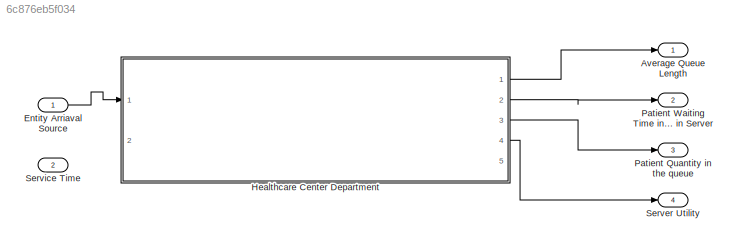
MODEL slx_6c876eb5f034
KIND library
CONFIG AbsTol = auto
CONFIG EnableMultiTasking = off
CONFIG FixedStep = auto
CONFIG MaxStep = auto
CONFIG MinStep = auto
CONFIG RelTol = 1e-3
CONFIG SampleTimeConstraint = Unconstrained
CONFIG Solver = VariableStepAuto
CONFIG SolverName = VariableStepAuto
CONFIG StartTime = 0.0
CONFIG StopTime = 10.0
BLOCK [Outport] Average Queue Length
  IconDisplay = Port number
BLOCK [Inport] Entity Arriaval Source
  IconDisplay = Port number
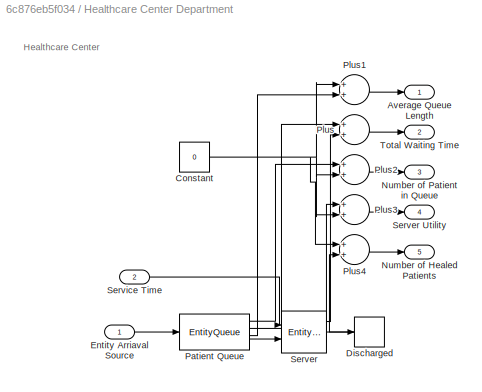
BLOCK [SubSystem] Healthcare Center Department
  Ports = [2, 5]
  RequestExecContextInheritance = off
BLOCK [Outport] Healthcare Center Department/Average Queue Length
  IconDisplay = Port number
BLOCK [Constant] Healthcare Center Department/Constant
  Value = 0
BLOCK [EntityTerminator] Healthcare Center Department/Discharged
  InputPortMap = u0
  InputPortMessageModes = m
  NumberEntitiesArrived = on
  OutputPortMap = o0
  Ports = [1, 1]
BLOCK [Inport] Healthcare Center Department/Entity Arriaval Source
  IconDisplay = Port number
BLOCK [Outport] Healthcare Center Department/Number of Healed Patients
  IconDisplay = Port number
  Port = 5
BLOCK [Outport] Healthcare Center Department/Number of Patient in Queue
  IconDisplay = Port number
  Port = 3
BLOCK [EntityQueue] Healthcare Center Department/Patient Queue
  AverageQueueLength = on
  AverageWait = on
  Capacity = 100000
  InputPortMap = u0
  InputPortMessageModes = m
  NumberEntitiesInBlock = on
  OutputPortMap = o1,o2,o3,o5
  OutputPortMessageModes = n,n,n,m
  Ports = [1, 4]
BLOCK [Sum] Healthcare Center Department/Plus
  InputSameDT = off
  OutDataTypeStr = Inherit: Inherit via internal rule
  Ports = [2, 1]
  SaturateOnIntegerOverflow = off
BLOCK [Sum] Healthcare Center Department/Plus1
  InputSameDT = off
  OutDataTypeStr = Inherit: Inherit via internal rule
  Ports = [2, 1]
  SaturateOnIntegerOverflow = off
BLOCK [Sum] Healthcare Center Department/Plus2
  InputSameDT = off
  OutDataTypeStr = Inherit: Inherit via internal rule
  Ports = [2, 1]
  SaturateOnIntegerOverflow = off
BLOCK [Sum] Healthcare Center Department/Plus3
  InputSameDT = off
  OutDataTypeStr = Inherit: Inherit via internal rule
  Ports = [2, 1]
  SaturateOnIntegerOverflow = off
BLOCK [Sum] Healthcare Center Department/Plus4
  InputSameDT = off
  OutDataTypeStr = Inherit: Inherit via internal rule
  Ports = [2, 1]
  SaturateOnIntegerOverflow = off
BLOCK [EntityServer] Healthcare Center Department/Server
  AverageWait = on
  Capacity = 4000
  InputPortMap = u0,u2
  InputPortMessageModes = n,m
  OutputPortMap = o4,o5,o9
  OutputPortMessageModes = n,n,m
  Ports = [2, 3]
  ServiceTimeAction = pd=makedist('Poisson');
  ServiceTimeAttributeName = entity
  ServiceTimeSource = Signal port
  Utilization = on
BLOCK [Outport] Healthcare Center Department/Server Utility
  IconDisplay = Port number
  Port = 4
BLOCK [Inport] Healthcare Center Department/Service Time
  IconDisplay = Port number
  Port = 2
BLOCK [Outport] Healthcare Center Department/Total Waiting Time
  IconDisplay = Port number
  Port = 2
BLOCK [Outport] Patient Quantity in the queue
  IconDisplay = Port number
  Port = 3
BLOCK [Outport] Patient Waiting Time in Queue + Patient Examination Time in Server 
  IconDisplay = Port number
  Port = 2
BLOCK [Outport] Server Utility
  IconDisplay = Port number
  Port = 4
BLOCK [Inport] Service Time
  IconDisplay = Port number
  Port = 2
ANNOTATION Healthcare Center Department: Healthcare Center
LINE Entity Arriaval Source:1 -> Healthcare Center Department:1
NET Healthcare Center Department/Constant:1 -> Healthcare Center Department/Plus1:1, Healthcare Center Department/Plus2:2, Healthcare Center Department/Plus3:2, Healthcare Center Department/Plus4:1
LINE Healthcare Center Department/Discharged:1 -> Healthcare Center Department/Plus4:2
LINE Healthcare Center Department/Entity Arriaval Source:1 -> Healthcare Center Department/Patient Queue:1
LINE Healthcare Center Department/Patient Queue:1 -> Healthcare Center Department/Plus2:1
LINE Healthcare Center Department/Patient Queue:2 -> Healthcare Center Department/Plus:1
LINE Healthcare Center Department/Patient Queue:3 -> Healthcare Center Department/Plus1:2
LINE Healthcare Center Department/Patient Queue:4 -> Healthcare Center Department/Server:2
LINE Healthcare Center Department/Plus1:1 -> Healthcare Center Department/Average Queue Length:1
LINE Healthcare Center Department/Plus2:1 -> Healthcare Center Department/Number of Patient in Queue:1
LINE Healthcare Center Department/Plus3:1 -> Healthcare Center Department/Server Utility:1
LINE Healthcare Center Department/Plus4:1 -> Healthcare Center Department/Number of Healed Patients:1
LINE Healthcare Center Department/Plus:1 -> Healthcare Center Department/Total Waiting Time:1
LINE Healthcare Center Department/Server:1 -> Healthcare Center Department/Plus:2
LINE Healthcare Center Department/Server:2 -> Healthcare Center Department/Plus3:1
LINE Healthcare Center Department/Server:3 -> Healthcare Center Department/Discharged:1
LINE Healthcare Center Department/Service Time:1 -> Healthcare Center Department/Server:1
LINE Healthcare Center Department:1 -> Average Queue Length:1
LINE Healthcare Center Department:2 -> Patient Waiting Time in Queue + Patient Examination Time in Server :1
LINE Healthcare Center Department:3 -> Patient Quantity in the queue:1
LINE Healthcare Center Department:4 -> Server Utility:1
note: NET lines group one-source signal fan-out (src -> all destinations, sorted); 1:1 wires keep LINE
